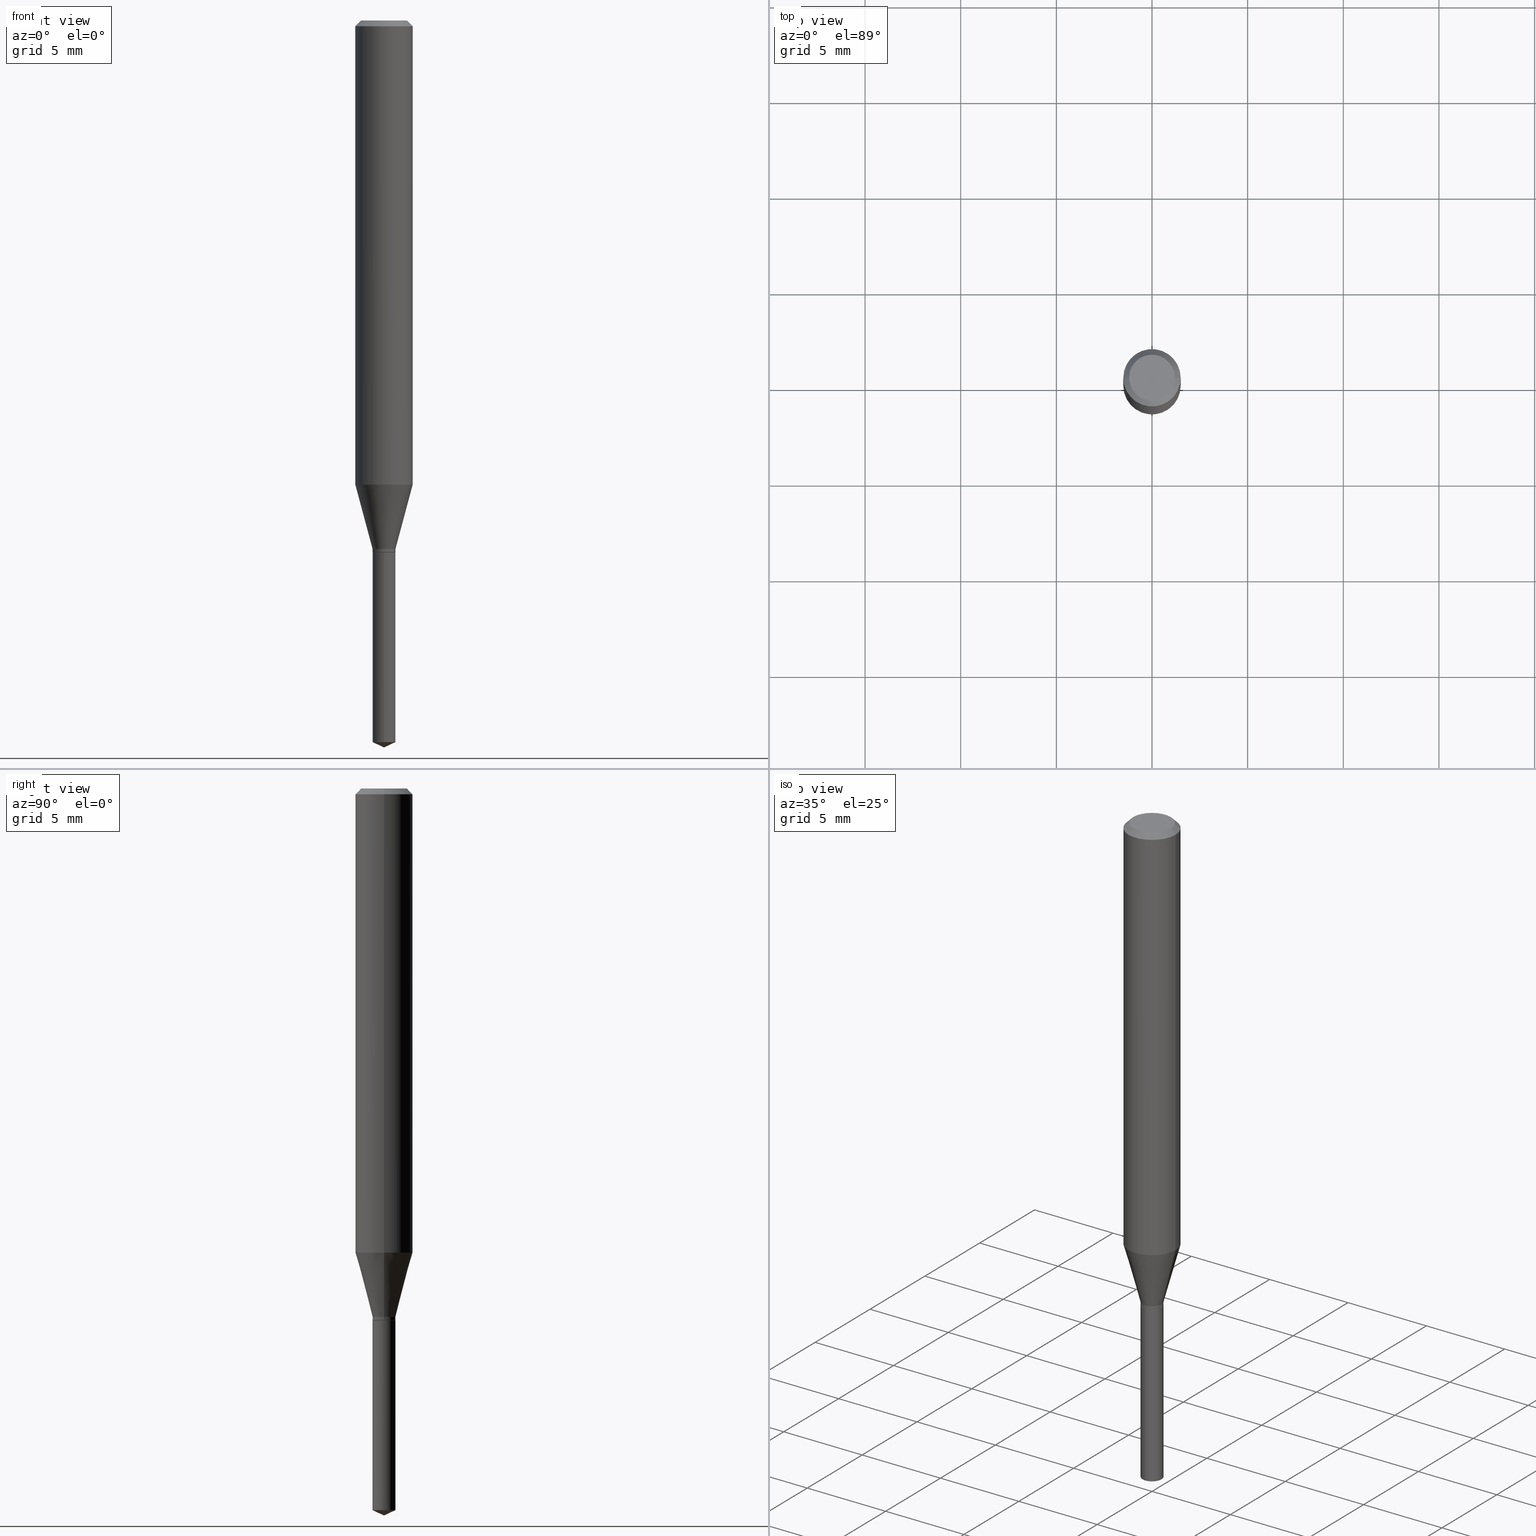
[diagram: canonical four-view strip — front | top / right | iso, engineering-drawing reading convention]
A machine part, canonical four-view strip (front | top / right | iso — engineering-drawing reading convention). The complete STEP part file that produces these views, byte-faithful:
ISO-10303-21;
HEADER;
FILE_DESCRIPTION (( 'STEP AP203' ),
    '1' );
FILE_NAME ('08154.STEP',
    '2024-04-24T13:19:30',
    ( '' ),
    ( '' ),
    'SwSTEP 2.0',
    'SolidWorks 2023',
    '' );
FILE_SCHEMA (( 'CONFIG_CONTROL_DESIGN' ));
ENDSEC;

DATA;
#1 = VERTEX_POINT ( 'NONE', #266 ) ;
#2 = DIRECTION ( 'NONE',  ( 0.7071067811865452413, -7.319954787623248157E-15, -0.7071067811865497932 ) ) ;
#3 = FACE_OUTER_BOUND ( 'NONE', #297, .T. ) ;
#4 = ORIENTED_EDGE ( 'NONE', *, *, #396, .F. ) ;
#5 = CARTESIAN_POINT ( 'NONE',  ( 2.888098660104664642E-31, -4.123439461173780879E-17, -0.01181000000000007565 ) ) ;
#6 = ORIENTED_EDGE ( 'NONE', *, *, #234, .F. ) ;
#7 = EDGE_LOOP ( 'NONE', ( #197, #283 ) ) ;
#8 = CONICAL_SURFACE ( 'NONE', #246, 0.05904999999999999832, 0.7853981633974450594 ) ;
#9 = ORIENTED_EDGE ( 'NONE', *, *, #427, .T. ) ;
#10 = CARTESIAN_POINT ( 'NONE',  ( 0.000000000000000000, 0.000000000000000000, 0.000000000000000000 ) ) ;
#11 = EDGE_LOOP ( 'NONE', ( #21, #193, #288, #100 ) ) ;
#12 = ADVANCED_FACE ( 'NONE', ( #3 ), #294, .T. ) ;
#13 = ORIENTED_EDGE ( 'NONE', *, *, #217, .T. ) ;
#14 = DIRECTION ( 'NONE',  ( -2.445402730703145379E-29, 3.491575962694140016E-15, 1.000000000000000000 ) ) ;
#15 = DIRECTION ( 'NONE',  ( -6.328713451373347290E-15, -0.9063077870366454958, 0.4226182617407092112 ) ) ;
#16 = AXIS2_PLACEMENT_3D ( 'NONE', #189, #344, #263 ) ;
#17 = CARTESIAN_POINT ( 'NONE',  ( -0.02359999999999997516, -3.628948722218652525E-15, -1.087399999999999922 ) ) ;
#18 = DIRECTION ( 'NONE',  ( -2.445468806185136877E-29, 3.491481338843145188E-15, 1.000000000000000000 ) ) ;
#19 = DIRECTION ( 'NONE',  ( 1.000000000000000000, -6.982962677686258033E-15, 0.000000000000000000 ) ) ;
#20 = DIRECTION ( 'NONE',  ( 1.000000000000000000, -6.982962677686258033E-15, 0.000000000000000000 ) ) ;
#21 = ORIENTED_EDGE ( 'NONE', *, *, #477, .T. ) ;
#22 = DATE_AND_TIME ( #363, #153 ) ;
#23 = AXIS2_PLACEMENT_3D ( 'NONE', #168, #392, #160 ) ;
#24 = APPROVAL_PERSON_ORGANIZATION ( #317, #387, #402 ) ;
#25 = CONICAL_SURFACE ( 'NONE', #121, 0.02359999999999997516, 0.2617993877991499074 ) ;
#26 = DIRECTION ( 'NONE',  ( 1.000000000000000000, -6.982962677686266711E-15, 4.876185090822587894E-29 ) ) ;
#27 = DIRECTION ( 'NONE',  ( -2.445402730703145379E-29, 3.491575962694140016E-15, 1.000000000000000000 ) ) ;
#28 = MANIFOLD_SOLID_BREP ( 'Body-Move/Copy2[1]', #222 ) ;
#29 = COORDINATED_UNIVERSAL_TIME_OFFSET ( 5, 0, .BEHIND. ) ;
#30 = DIRECTION ( 'NONE',  ( 2.445468806185136597E-29, -3.491481338843145583E-15, -1.000000000000000000 ) ) ;
#31 = CONICAL_SURFACE ( 'NONE', #456, 84.42940631927235984, 1.134464013796306903 ) ;
#32 = FACE_OUTER_BOUND ( 'NONE', #36, .T. ) ;
#33 = DIRECTION ( 'NONE',  ( 6.439704144417001954E-15, 0.9063077870366483824, 0.4226182617407028830 ) ) ;
#34 = VERTEX_POINT ( 'NONE', #380 ) ;
#35 = CARTESIAN_POINT ( 'NONE',  ( 2.659202779845717713E-29, -3.796636807858036634E-15, -1.087399999999999922 ) ) ;
#36 = EDGE_LOOP ( 'NONE', ( #115, #352, #410, #221 ) ) ;
#37 =( GEOMETRIC_REPRESENTATION_CONTEXT ( 3 ) GLOBAL_UNCERTAINTY_ASSIGNED_CONTEXT ( ( #459 ) ) GLOBAL_UNIT_ASSIGNED_CONTEXT ( ( #220, #124, #196 ) ) REPRESENTATION_CONTEXT ( 'NONE', 'WORKASPACE' ) );
#38 = EDGE_CURVE ( 'NONE', #76, #280, #425, .T. ) ;
#39 = ORIENTED_EDGE ( 'NONE', *, *, #217, .F. ) ;
#40 = ORIENTED_EDGE ( 'NONE', *, *, #78, .T. ) ;
#41 = CARTESIAN_POINT ( 'NONE',  ( 3.631728028533853753E-29, -5.185218924775541926E-15, -1.485095139267541775 ) ) ;
#42 = DIRECTION ( 'NONE',  ( 1.000000000000000000, -6.982962677686266711E-15, 4.876176775795935793E-29 ) ) ;
#43 = ADVANCED_FACE ( 'NONE', ( #384 ), #449, .T. ) ;
#44 = APPLICATION_CONTEXT ( 'configuration controlled 3d designs of mechanical parts and assemblies' ) ;
#45 = CARTESIAN_POINT ( 'NONE',  ( 0.000000000000000000, 0.000000000000000000, 0.000000000000000000 ) ) ;
#46 = ADVANCED_FACE ( 'NONE', ( #225 ), #81, .T. ) ;
#47 = AXIS2_PLACEMENT_3D ( 'NONE', #444, #103, #414 ) ;
#48 = ORIENTED_EDGE ( 'NONE', *, *, #158, .T. ) ;
#49 = ORIENTED_EDGE ( 'NONE', *, *, #61, .F. ) ;
#50 = APPROVAL_DATE_TIME ( #353, #161 ) ;
#51 = ORIENTED_EDGE ( 'NONE', *, *, #234, .T. ) ;
#52 = DIRECTION ( 'NONE',  ( -1.000000000000000000, 6.982962677686266711E-15, 0.000000000000000000 ) ) ;
#53 = CALENDAR_DATE ( 2024, 24, 4 ) ;
#54 = DIRECTION ( 'NONE',  ( 0.7071067811865021646, -2.468850131081782561E-15, 0.7071067811865926478 ) ) ;
#55 = CARTESIAN_POINT ( 'NONE',  ( 2.335664319465592728E-29, -3.334709633011983914E-15, -0.9550987988716830301 ) ) ;
#56 = CARTESIAN_POINT ( 'NONE',  ( 2.659202779845717713E-29, -3.796636807858036634E-15, -1.087399999999999922 ) ) ;
#57 = FACE_OUTER_BOUND ( 'NONE', #79, .T. ) ;
#58 = VECTOR ( 'NONE', #111, 39.37007874015748854 ) ;
#59 = CC_DESIGN_APPROVAL ( #119, ( #399 ) ) ;
#60 = CARTESIAN_POINT ( 'NONE',  ( 0.02309999999999999901, -3.982732763218375225E-15, -1.094499999999999806 ) ) ;
#61 = EDGE_CURVE ( 'NONE', #1, #465, #437, .T. ) ;
#62 = APPROVAL_DATE_TIME ( #242, #119 ) ;
#63 = CARTESIAN_POINT ( 'NONE',  ( 0.04724000000000000421, -3.852183633974369345E-16, -3.380025165621689721E-19 ) ) ;
#64 = LOCAL_TIME ( 9, 19, 30.00000000000000000, #96 ) ;
#65 = ADVANCED_FACE ( 'NONE', ( #227 ), #462, .T. ) ;
#66 = CARTESIAN_POINT ( 'NONE',  ( 2.335664319465592728E-29, -3.334709633011983914E-15, -0.9550987988716830301 ) ) ;
#67 = ORIENTED_EDGE ( 'NONE', *, *, #435, .F. ) ;
#68 = CARTESIAN_POINT ( 'NONE',  ( 0.000000000000000000, 0.000000000000000000, 0.000000000000000000 ) ) ;
#69 = LINE ( 'NONE', #207, #289 ) ;
#70 = CARTESIAN_POINT ( 'NONE',  ( 2.888098660104664642E-31, -4.123439461173780879E-17, -0.01181000000000007565 ) ) ;
#71 = ORIENTED_EDGE ( 'NONE', *, *, #126, .F. ) ;
#72 = CARTESIAN_POINT ( 'NONE',  ( 0.05904999999999999832, -4.535783407291118600E-16, -0.01181000000000007565 ) ) ;
#73 = EDGE_CURVE ( 'NONE', #417, #428, #474, .T. ) ;
#74 = ORIENTED_EDGE ( 'NONE', *, *, #418, .F. ) ;
#75 = DIRECTION ( 'NONE',  ( -2.445402730703145379E-29, 3.491575962694140016E-15, 1.000000000000000000 ) ) ;
#76 = VERTEX_POINT ( 'NONE', #87 ) ;
#77 = DIRECTION ( 'NONE',  ( -2.445468806185136597E-29, 3.491481338843145583E-15, 1.000000000000000000 ) ) ;
#78 = EDGE_CURVE ( 'NONE', #389, #452, #269, .T. ) ;
#79 = EDGE_LOOP ( 'NONE', ( #39, #299, #48, #142 ) ) ;
#80 = AXIS2_PLACEMENT_3D ( 'NONE', #479, #276, #441 ) ;
#81 = CYLINDRICAL_SURFACE ( 'NONE', #330, 0.05905000000000006077 ) ;
#82 = EDGE_LOOP ( 'NONE', ( #433, #13, #460, #214 ) ) ;
#83 = DESIGN_CONTEXT ( 'detailed design', #44, 'design' ) ;
#84 = ORIENTED_EDGE ( 'NONE', *, *, #427, .F. ) ;
#85 = VECTOR ( 'NONE', #248, 39.37007874015748854 ) ;
#86 = ORIENTED_EDGE ( 'NONE', *, *, #38, .T. ) ;
#87 = CARTESIAN_POINT ( 'NONE',  ( 0.02359999999999997516, -3.961434727051432093E-15, -1.087399999999999922 ) ) ;
#88 = DIRECTION ( 'NONE',  ( -2.445468806185136597E-29, 3.491481338843145583E-15, 1.000000000000000000 ) ) ;
#89 = DIRECTION ( 'NONE',  ( -2.445468806185136597E-29, 3.491481338843145583E-15, 1.000000000000000000 ) ) ;
#90 = DATE_TIME_ROLE ( 'creation_date' ) ;
#91 = EDGE_CURVE ( 'NONE', #345, #129, #483, .T. ) ;
#92 = AXIS2_PLACEMENT_3D ( 'NONE', #164, #127, #26 ) ;
#93 = VECTOR ( 'NONE', #224, 39.37007874015748143 ) ;
#94 = VERTEX_POINT ( 'NONE', #407 ) ;
#95 = DIRECTION ( 'NONE',  ( 1.000000000000000000, 0.000000000000000000, 0.000000000000000000 ) ) ;
#96 = COORDINATED_UNIVERSAL_TIME_OFFSET ( 5, 0, .BEHIND. ) ;
#97 = EDGE_CURVE ( 'NONE', #389, #76, #260, .T. ) ;
#98 = DIRECTION ( 'NONE',  ( -2.445468806185136597E-29, 3.491481338843145583E-15, 1.000000000000000000 ) ) ;
#99 = VECTOR ( 'NONE', #15, 39.37007874015748143 ) ;
#100 = ORIENTED_EDGE ( 'NONE', *, *, #315, .F. ) ;
#101 = AXIS2_PLACEMENT_3D ( 'NONE', #284, #442, #448 ) ;
#102 = CARTESIAN_POINT ( 'NONE',  ( 0.000000000000000000, 0.000000000000000000, 0.000000000000000000 ) ) ;
#103 = DIRECTION ( 'NONE',  ( 2.438088387897960049E-29, -3.491481338843145188E-15, -1.000000000000000000 ) ) ;
#104 = PERSON_AND_ORGANIZATION_ROLE ( 'design_supplier' ) ;
#105 = DIRECTION ( 'NONE',  ( -2.445468806185136597E-29, 3.491481338843145583E-15, 1.000000000000000000 ) ) ;
#106 = EDGE_CURVE ( 'NONE', #280, #452, #112, .T. ) ;
#107 = AXIS2_PLACEMENT_3D ( 'NONE', #215, #412, #367 ) ;
#108 = CARTESIAN_POINT ( 'NONE',  ( 3.658712932950369103E-29, -5.223539666176875291E-15, -1.496099999999999985 ) ) ;
#109 = DIRECTION ( 'NONE',  ( -6.982962677686265133E-15, -1.000000000000000000, 5.787813545898861862E-15 ) ) ;
#110 = DIRECTION ( 'NONE',  ( 1.000000000000000000, -6.982962677686258033E-15, 0.000000000000000000 ) ) ;
#111 = DIRECTION ( 'NONE',  ( 0.2588190451025211836, 1.565188264969622559E-15, 0.9659258262890679791 ) ) ;
#112 = CIRCLE ( 'NONE', #306, 0.05905000000000011628 ) ;
#113 = AXIS2_PLACEMENT_3D ( 'NONE', #68, #436, #95 ) ;
#114 = EDGE_LOOP ( 'NONE', ( #386, #429, #86, #270 ) ) ;
#115 = ORIENTED_EDGE ( 'NONE', *, *, #440, .F. ) ;
#116 = VERTEX_POINT ( 'NONE', #312 ) ;
#117 = COORDINATED_UNIVERSAL_TIME_OFFSET ( 5, 0, .BEHIND. ) ;
#118 = EDGE_LOOP ( 'NONE', ( #134, #219, #49 ) ) ;
#119 = APPROVAL ( #438, 'UNSPECIFIED' ) ;
#120 = LINE ( 'NONE', #150, #457 ) ;
#121 = AXIS2_PLACEMENT_3D ( 'NONE', #56, #77, #336 ) ;
#122 = DIMENSIONAL_EXPONENTS ( 1.000000000000000000, 0.000000000000000000, 0.000000000000000000, 0.000000000000000000, 0.000000000000000000, 0.000000000000000000, 0.000000000000000000 ) ;
#123 = CARTESIAN_POINT ( 'NONE',  ( -9.261705871415894043E-28, 1.322399773465276608E-13, 37.87397874015748300 ) ) ;
#124 =( NAMED_UNIT ( * ) PLANE_ANGLE_UNIT ( ) SI_UNIT ( $, .RADIAN. ) );
#125 = CC_DESIGN_PERSON_AND_ORGANIZATION_ASSIGNMENT ( #180, #291, ( #399 ) ) ;
#126 = EDGE_CURVE ( 'NONE', #76, #389, #144, .T. ) ;
#127 = DIRECTION ( 'NONE',  ( -2.445468806185136597E-29, 3.491481338843145583E-15, 1.000000000000000000 ) ) ;
#128 = CIRCLE ( 'NONE', #136, 0.02359999999999997169 ) ;
#129 = VERTEX_POINT ( 'NONE', #472 ) ;
#130 = APPROVAL_DATE_TIME ( #22, #387 ) ;
#131 = CARTESIAN_POINT ( 'NONE',  ( 2.676565608369631794E-29, -3.821426325363822773E-15, -1.094499999999999806 ) ) ;
#132 = DATE_AND_TIME ( #165, #307 ) ;
#133 = CARTESIAN_POINT ( 'NONE',  ( 1.676880856394103626E-16, 0.02359999999999617959, -1.094500000000000028 ) ) ;
#134 = ORIENTED_EDGE ( 'NONE', *, *, #342, .F. ) ;
#135 = FACE_OUTER_BOUND ( 'NONE', #7, .T. ) ;
#136 = AXIS2_PLACEMENT_3D ( 'NONE', #333, #98, #245 ) ;
#137 = AXIS2_PLACEMENT_3D ( 'NONE', #5, #179, #52 ) ;
#138 = PLANE ( 'NONE',  #47 ) ;
#139 = ADVANCED_FACE ( 'NONE', ( #235 ), #390, .T. ) ;
#140 = CARTESIAN_POINT ( 'NONE',  ( -1.647979191933691307E-16, -0.02360000000000382278, -1.094499999999999806 ) ) ;
#141 = CARTESIAN_POINT ( 'NONE',  ( 2.888098660104664642E-31, -4.123439461173780879E-17, -0.01181000000000007565 ) ) ;
#142 = ORIENTED_EDGE ( 'NONE', *, *, #244, .F. ) ;
#143 = ADVANCED_BREP_SHAPE_REPRESENTATION ( '08154', ( #28, #187, #113 ), #37 ) ;
#144 = CIRCLE ( 'NONE', #385, 0.02359999999999997516 ) ;
#145 = APPROVAL_PERSON_ORGANIZATION ( #275, #119, #206 ) ;
#146 = FACE_OUTER_BOUND ( 'NONE', #419, .T. ) ;
#147 = EDGE_CURVE ( 'NONE', #116, #465, #202, .T. ) ;
#148 = LINE ( 'NONE', #420, #93 ) ;
#149 = ORIENTED_EDGE ( 'NONE', *, *, #315, .T. ) ;
#150 = CARTESIAN_POINT ( 'NONE',  ( -0.02359999999999997169, 1.676880856393834427E-16, -1.160868681300156402E-30 ) ) ;
#151 = EDGE_LOOP ( 'NONE', ( #216, #453 ) ) ;
#152 = CONICAL_SURFACE ( 'NONE', #298, 0.02309999999999999901, 0.7853981633973843302 ) ;
#153 = LOCAL_TIME ( 9, 19, 30.00000000000000000, #29 ) ;
#154 = ORIENTED_EDGE ( 'NONE', *, *, #61, .T. ) ;
#155 = EDGE_CURVE ( 'NONE', #252, #94, #199, .T. ) ;
#156 = DIRECTION ( 'NONE',  ( -2.445468806185136597E-29, 3.491481338843145583E-15, 1.000000000000000000 ) ) ;
#157 = ORIENTED_EDGE ( 'NONE', *, *, #310, .F. ) ;
#158 = EDGE_CURVE ( 'NONE', #345, #34, #311, .T. ) ;
#159 = APPLICATION_PROTOCOL_DEFINITION ( 'international standard', 'config_control_design', 1994, #184 ) ;
#160 = DIRECTION ( 'NONE',  ( 1.000000000000000000, -6.982962677686265922E-15, 0.000000000000000000 ) ) ;
#161 = APPROVAL ( #232, 'UNSPECIFIED' ) ;
#162 = EDGE_CURVE ( 'NONE', #129, #345, #181, .T. ) ;
#163 = DIRECTION ( 'NONE',  ( -2.445468806185136597E-29, 3.491481338843145583E-15, 1.000000000000000000 ) ) ;
#164 = CARTESIAN_POINT ( 'NONE',  ( 8.265746106709734507E-48, -1.180129479067563789E-33, -3.380025165646692144E-19 ) ) ;
#165 = CALENDAR_DATE ( 2024, 24, 4 ) ;
#166 = CARTESIAN_POINT ( 'NONE',  ( 2.659202779845717713E-29, -3.796636807858036634E-15, -1.087399999999999922 ) ) ;
#167 = LINE ( 'NONE', #282, #434 ) ;
#168 = CARTESIAN_POINT ( 'NONE',  ( 2.659202779845717713E-29, -3.796636807858036634E-15, -1.087399999999999922 ) ) ;
#169 = COORDINATED_UNIVERSAL_TIME_OFFSET ( 5, 0, .BEHIND. ) ;
#170 = FACE_OUTER_BOUND ( 'NONE', #339, .T. ) ;
#171 = CARTESIAN_POINT ( 'NONE',  ( -0.02359999999999997169, -3.640470610636835238E-15, -1.093999999999999861 ) ) ;
#172 = AXIS2_PLACEMENT_3D ( 'NONE', #401, #308, #322 ) ;
#173 = LOCAL_TIME ( 9, 19, 30.00000000000000000, #117 ) ;
#174 = EDGE_CURVE ( 'NONE', #326, #428, #378, .T. ) ;
#175 = DIRECTION ( 'NONE',  ( -2.445468806185136877E-29, 3.491481338843145188E-15, 1.000000000000000000 ) ) ;
#176 = CARTESIAN_POINT ( 'NONE',  ( 0.02309999999999999901, -3.982732763218375225E-15, -1.094499999999999806 ) ) ;
#177 = ADVANCED_FACE ( 'NONE', ( #464 ), #31, .T. ) ;
#178 = EDGE_LOOP ( 'NONE', ( #157, #154, #149, #74 ) ) ;
#179 = DIRECTION ( 'NONE',  ( 2.445468806185136597E-29, -3.491481338843145583E-15, -1.000000000000000000 ) ) ;
#180 = PERSON_AND_ORGANIZATION ( #292, #261 ) ;
#181 = CIRCLE ( 'NONE', #285, 0.02309999999999999901 ) ;
#182 = AXIS2_PLACEMENT_3D ( 'NONE', #35, #463, #381 ) ;
#183 = EDGE_LOOP ( 'NONE', ( #313, #67, #334, #51 ) ) ;
#184 = APPLICATION_CONTEXT ( 'configuration controlled 3d designs of mechanical parts and assemblies' ) ;
#185 = CARTESIAN_POINT ( 'NONE',  ( 0.02359999999999997169, -1.647979191933957054E-16, 1.150777719087839379E-30 ) ) ;
#186 = ORIENTED_EDGE ( 'NONE', *, *, #106, .F. ) ;
#187 = MANIFOLD_SOLID_BREP ( 'Body-Move/Copy2[2]', #337 ) ;
#188 = FACE_OUTER_BOUND ( 'NONE', #114, .T. ) ;
#189 = CARTESIAN_POINT ( 'NONE',  ( 3.631728028533853753E-29, -5.185218924775541926E-15, -1.485095139267541775 ) ) ;
#190 = ADVANCED_FACE ( 'NONE', ( #57 ), #152, .T. ) ;
#191 = ORIENTED_EDGE ( 'NONE', *, *, #147, .F. ) ;
#192 = APPROVAL_PERSON_ORGANIZATION ( #228, #161, #394 ) ;
#193 = ORIENTED_EDGE ( 'NONE', *, *, #310, .T. ) ;
#194 = CARTESIAN_POINT ( 'NONE',  ( 2.676565608369631794E-29, -3.821426325363822773E-15, -1.094499999999999806 ) ) ;
#195 = ORIENTED_EDGE ( 'NONE', *, *, #126, .T. ) ;
#196 =( NAMED_UNIT ( * ) SI_UNIT ( $, .STERADIAN. ) SOLID_ANGLE_UNIT ( ) );
#197 = ORIENTED_EDGE ( 'NONE', *, *, #91, .F. ) ;
#198 = CARTESIAN_POINT ( 'NONE',  ( -1.647979191933595657E-16, -0.02360000000000518280, -1.485095139267541775 ) ) ;
#199 = CIRCLE ( 'NONE', #432, 0.02360000000000000292 ) ;
#200 = CARTESIAN_POINT ( 'NONE',  ( 2.676565608369631794E-29, -3.821426325363822773E-15, -1.094499999999999806 ) ) ;
#201 = PERSON_AND_ORGANIZATION_ROLE ( 'design_owner' ) ;
#202 = LINE ( 'NONE', #268, #99 ) ;
#203 = PRODUCT_DEFINITION_SHAPE ( 'NONE', 'NONE',  #413 ) ;
#204 = FACE_OUTER_BOUND ( 'NONE', #233, .T. ) ;
#205 = CIRCLE ( 'NONE', #92, 0.04724000000000000421 ) ;
#206 = APPROVAL_ROLE ( '' ) ;
#207 = CARTESIAN_POINT ( 'NONE',  ( 0.05905000000000006077, -4.123439461173744764E-16, 2.879382386107503023E-30 ) ) ;
#208 = EDGE_CURVE ( 'NONE', #301, #417, #205, .T. ) ;
#209 = PERSON_AND_ORGANIZATION ( #292, #261 ) ;
#210 = ADVANCED_FACE ( 'NONE', ( #371 ), #8, .T. ) ;
#211 = DIRECTION ( 'NONE',  ( 1.000000000000000000, -6.982962677686266711E-15, 0.000000000000000000 ) ) ;
#212 = AXIS2_PLACEMENT_3D ( 'NONE', #131, #243, #240 ) ;
#213 = SECURITY_CLASSIFICATION ( '', '', #461 ) ;
#214 = ORIENTED_EDGE ( 'NONE', *, *, #158, .F. ) ;
#215 = CARTESIAN_POINT ( 'NONE',  ( 2.676565608369631794E-29, -3.821426325363822773E-15, -1.094499999999999806 ) ) ;
#216 = ORIENTED_EDGE ( 'NONE', *, *, #155, .T. ) ;
#217 = EDGE_CURVE ( 'NONE', #129, #230, #372, .T. ) ;
#218 = FACE_OUTER_BOUND ( 'NONE', #445, .T. ) ;
#219 = ORIENTED_EDGE ( 'NONE', *, *, #147, .T. ) ;
#220 =( CONVERSION_BASED_UNIT ( 'INCH', #290 ) LENGTH_UNIT ( ) NAMED_UNIT ( #122 ) );
#221 = ORIENTED_EDGE ( 'NONE', *, *, #97, .F. ) ;
#222 = CLOSED_SHELL ( 'NONE', ( #139, #177, #43, #65, #364 ) ) ;
#223 = CONICAL_SURFACE ( 'NONE', #379, 0.02309999999999999901, 0.7853981633973843302 ) ;
#224 = DIRECTION ( 'NONE',  ( -2.445468806185136877E-29, 3.491481338843145188E-15, 1.000000000000000000 ) ) ;
#225 = FACE_OUTER_BOUND ( 'NONE', #328, .T. ) ;
#226 = ORIENTED_EDGE ( 'NONE', *, *, #106, .T. ) ;
#227 = FACE_OUTER_BOUND ( 'NONE', #178, .T. ) ;
#228 = PERSON_AND_ORGANIZATION ( #292, #261 ) ;
#229 = CARTESIAN_POINT ( 'NONE',  ( 0.02359999999999997516, -3.961434727051432093E-15, -1.087399999999999922 ) ) ;
#230 = VERTEX_POINT ( 'NONE', #171 ) ;
#231 = AXIS2_PLACEMENT_3D ( 'NONE', #41, #14, #470 ) ;
#232 = APPROVAL_STATUS ( 'not_yet_approved' ) ;
#233 = EDGE_LOOP ( 'NONE', ( #430, #316, #71, #4 ) ) ;
#234 = EDGE_CURVE ( 'NONE', #428, #326, #272, .T. ) ;
#235 = FACE_OUTER_BOUND ( 'NONE', #11, .T. ) ;
#236 = CARTESIAN_POINT ( 'NONE',  ( 2.676565608369631794E-29, -3.821426325363822773E-15, -1.094499999999999806 ) ) ;
#237 = DIRECTION ( 'NONE',  ( -6.982962677686265133E-15, -1.000000000000000000, 5.787813545898861862E-15 ) ) ;
#238 = DIRECTION ( 'NONE',  ( 1.000000000000000000, -6.982962677686266711E-15, 0.000000000000000000 ) ) ;
#239 = LOCAL_TIME ( 9, 19, 30.00000000000000000, #383 ) ;
#240 = DIRECTION ( 'NONE',  ( -6.982962677686265133E-15, -1.000000000000000000, 5.787813545898861862E-15 ) ) ;
#241 = ADVANCED_FACE ( 'NONE', ( #32 ), #329, .T. ) ;
#242 = DATE_AND_TIME ( #398, #64 ) ;
#243 = DIRECTION ( 'NONE',  ( -2.445402730703145379E-29, 3.491575962694140016E-15, 1.000000000000000000 ) ) ;
#244 = EDGE_CURVE ( 'NONE', #230, #34, #128, .T. ) ;
#245 = DIRECTION ( 'NONE',  ( 1.000000000000000000, -6.982962677686266711E-15, 0.000000000000000000 ) ) ;
#246 = AXIS2_PLACEMENT_3D ( 'NONE', #70, #30, #281 ) ;
#247 = EDGE_CURVE ( 'NONE', #452, #280, #415, .T. ) ;
#248 = DIRECTION ( 'NONE',  ( -0.7071067811865021646, 7.493145998870188499E-15, 0.7071067811865926478 ) ) ;
#249 = CARTESIAN_POINT ( 'NONE',  ( 0.05905000000000011628, -3.747053579129358835E-15, -0.9550987988716830301 ) ) ;
#250 = DIRECTION ( 'NONE',  ( 1.000000000000000000, -6.982962677686266711E-15, 0.000000000000000000 ) ) ;
#251 = VECTOR ( 'NONE', #54, 39.37007874015748854 ) ;
#252 = VERTEX_POINT ( 'NONE', #140 ) ;
#253 = PLANE ( 'NONE',  #107 ) ;
#254 = ORIENTED_EDGE ( 'NONE', *, *, #296, .F. ) ;
#255 = ORIENTED_EDGE ( 'NONE', *, *, #174, .T. ) ;
#256 = FACE_OUTER_BOUND ( 'NONE', #82, .T. ) ;
#257 = ORIENTED_EDGE ( 'NONE', *, *, #208, .T. ) ;
#258 = CARTESIAN_POINT ( 'NONE',  ( 0.05904999999999999832, -4.463468013801466955E-16, -0.01181000000000007565 ) ) ;
#259 = CARTESIAN_POINT ( 'NONE',  ( -9.261705871415894043E-28, 1.322399773465276608E-13, 37.87397874015748300 ) ) ;
#260 = CIRCLE ( 'NONE', #23, 0.02359999999999997516 ) ;
#261 = ORGANIZATION ( 'UNSPECIFIED', 'UNSPECIFIED', '' ) ;
#262 = ORIENTED_EDGE ( 'NONE', *, *, #247, .T. ) ;
#263 = DIRECTION ( 'NONE',  ( -6.982962677686265133E-15, -1.000000000000000000, 0.000000000000000000 ) ) ;
#264 = ORIENTED_EDGE ( 'NONE', *, *, #73, .F. ) ;
#265 = CALENDAR_DATE ( 2024, 24, 4 ) ;
#266 = CARTESIAN_POINT ( 'NONE',  ( 1.676880856394199276E-16, 0.02359999999999481263, -1.485095139267541775 ) ) ;
#267 = AXIS2_PLACEMENT_3D ( 'NONE', #45, #156, #455 ) ;
#268 = CARTESIAN_POINT ( 'NONE',  ( 3.658567025404975087E-29, -5.223746797786701947E-15, -1.496099999999999985 ) ) ;
#269 = LINE ( 'NONE', #17, #423 ) ;
#270 = ORIENTED_EDGE ( 'NONE', *, *, #247, .F. ) ;
#271 = ADVANCED_FACE ( 'NONE', ( #170 ), #138, .F. ) ;
#272 = CIRCLE ( 'NONE', #488, 0.05904999999999999832 ) ;
#273 = CC_DESIGN_APPROVAL ( #161, ( #213 ) ) ;
#274 = DIRECTION ( 'NONE',  ( -0.2588190451025211836, 5.211531920934547886E-15, 0.9659258262890679791 ) ) ;
#275 = PERSON_AND_ORGANIZATION ( #292, #261 ) ;
#276 = DIRECTION ( 'NONE',  ( -2.445468806185136597E-29, 3.491481338843145583E-15, 1.000000000000000000 ) ) ;
#277 = CARTESIAN_POINT ( 'NONE',  ( 2.675342873966538993E-29, -3.819680584694400481E-15, -1.093999999999999861 ) ) ;
#278 = AXIS2_PLACEMENT_3D ( 'NONE', #368, #359, #20 ) ;
#279 = AXIS2_PLACEMENT_3D ( 'NONE', #277, #105, #250 ) ;
#280 = VERTEX_POINT ( 'NONE', #249 ) ;
#281 = DIRECTION ( 'NONE',  ( -1.000000000000000000, 6.982962677686266711E-15, 0.000000000000000000 ) ) ;
#282 = CARTESIAN_POINT ( 'NONE',  ( -1.647979191933691307E-16, -0.02360000000000382278, -1.094499999999999806 ) ) ;
#283 = ORIENTED_EDGE ( 'NONE', *, *, #162, .F. ) ;
#284 = CARTESIAN_POINT ( 'NONE',  ( 2.676565608369631794E-29, -3.821426325363822773E-15, -1.094499999999999806 ) ) ;
#285 = AXIS2_PLACEMENT_3D ( 'NONE', #194, #89, #469 ) ;
#286 = PRODUCT_RELATED_PRODUCT_CATEGORY ( 'detail', '', ( #404 ) ) ;
#287 = CC_DESIGN_APPROVAL ( #387, ( #413 ) ) ;
#288 = ORIENTED_EDGE ( 'NONE', *, *, #155, .F. ) ;
#289 = VECTOR ( 'NONE', #175, 39.37007874015748143 ) ;
#290 = LENGTH_MEASURE_WITH_UNIT ( LENGTH_MEASURE( 0.02539999999999999897 ), #422 );
#291 = PERSON_AND_ORGANIZATION_ROLE ( 'creator' ) ;
#292 = PERSON ( 'UNSPECIFIED', 'UNSPECIFIED', 'UNSPECIFIED', ('UNSPECIFIED'), ('UNSPECIFIED'), ('UNSPECIFIED') ) ;
#293 = LINE ( 'NONE', #185, #424 ) ;
#294 = CYLINDRICAL_SURFACE ( 'NONE', #267, 0.05905000000000006077 ) ;
#295 = ADVANCED_FACE ( 'NONE', ( #135 ), #253, .F. ) ;
#296 = EDGE_CURVE ( 'NONE', #280, #326, #69, .T. ) ;
#297 = EDGE_LOOP ( 'NONE', ( #226, #9, #376, #254 ) ) ;
#298 = AXIS2_PLACEMENT_3D ( 'NONE', #200, #358, #19 ) ;
#299 = ORIENTED_EDGE ( 'NONE', *, *, #162, .T. ) ;
#300 = ORIENTED_EDGE ( 'NONE', *, *, #208, .F. ) ;
#301 = VERTEX_POINT ( 'NONE', #63 ) ;
#302 = CARTESIAN_POINT ( 'NONE',  ( 2.676565608369631794E-29, -3.821426325363822773E-15, -1.094499999999999806 ) ) ;
#303 = SHAPE_DEFINITION_REPRESENTATION ( #203, #143 ) ;
#304 = DIRECTION ( 'NONE',  ( 1.000000000000000000, -6.982962677686266711E-15, 0.000000000000000000 ) ) ;
#305 = EDGE_LOOP ( 'NONE', ( #191, #341, #426 ) ) ;
#306 = AXIS2_PLACEMENT_3D ( 'NONE', #55, #478, #238 ) ;
#307 = LOCAL_TIME ( 9, 19, 30.00000000000000000, #169 ) ;
#308 = DIRECTION ( 'NONE',  ( -2.445402730703145379E-29, 3.491575962694140016E-15, 1.000000000000000000 ) ) ;
#309 = DIRECTION ( 'NONE',  ( 1.000000000000000000, -6.982962677686266711E-15, 4.876185090822587894E-29 ) ) ;
#310 = EDGE_CURVE ( 'NONE', #1, #94, #369, .T. ) ;
#311 = LINE ( 'NONE', #60, #251 ) ;
#312 = CARTESIAN_POINT ( 'NONE',  ( 3.658567025404975087E-29, -5.223746797786701947E-15, -1.496099999999999985 ) ) ;
#313 = ORIENTED_EDGE ( 'NONE', *, *, #388, .F. ) ;
#314 = CC_DESIGN_DATE_AND_TIME_ASSIGNMENT ( #132, #90, ( #413 ) ) ;
#315 = EDGE_CURVE ( 'NONE', #465, #252, #167, .T. ) ;
#316 = ORIENTED_EDGE ( 'NONE', *, *, #440, .T. ) ;
#317 = PERSON_AND_ORGANIZATION ( #292, #261 ) ;
#318 = AXIS2_PLACEMENT_3D ( 'NONE', #403, #351, #304 ) ;
#319 = CONICAL_SURFACE ( 'NONE', #182, 0.02359999999999997516, 0.2617993877991499074 ) ;
#320 = PERSON_AND_ORGANIZATION_ROLE ( 'creator' ) ;
#321 = CYLINDRICAL_SURFACE ( 'NONE', #80, 0.02359999999999997169 ) ;
#322 = DIRECTION ( 'NONE',  ( -6.982962677686265133E-15, -1.000000000000000000, 5.787813545898861862E-15 ) ) ;
#323 = EDGE_CURVE ( 'NONE', #34, #230, #466, .T. ) ;
#324 = MECHANICAL_CONTEXT ( 'NONE', #184, 'mechanical' ) ;
#325 = DIRECTION ( 'NONE',  ( -2.445468806185136597E-29, 3.491481338843145583E-15, 1.000000000000000000 ) ) ;
#326 = VERTEX_POINT ( 'NONE', #72 ) ;
#327 = APPLICATION_PROTOCOL_DEFINITION ( 'international standard', 'config_control_design', 1994, #44 ) ;
#328 = EDGE_LOOP ( 'NONE', ( #84, #262, #361, #6 ) ) ;
#329 = CYLINDRICAL_SURFACE ( 'NONE', #346, 0.02359999999999997169 ) ;
#330 = AXIS2_PLACEMENT_3D ( 'NONE', #10, #382, #42 ) ;
#331 = AXIS2_PLACEMENT_3D ( 'NONE', #236, #75, #109 ) ;
#332 = PERSON_AND_ORGANIZATION ( #292, #261 ) ;
#333 = CARTESIAN_POINT ( 'NONE',  ( 2.675342873966538993E-29, -3.819680584694400481E-15, -1.093999999999999861 ) ) ;
#334 = ORIENTED_EDGE ( 'NONE', *, *, #73, .T. ) ;
#335 = FACE_OUTER_BOUND ( 'NONE', #151, .T. ) ;
#336 = DIRECTION ( 'NONE',  ( 1.000000000000000000, -6.982962677686265922E-15, 0.000000000000000000 ) ) ;
#337 = CLOSED_SHELL ( 'NONE', ( #443, #391, #12, #473, #377, #241, #480, #46, #210, #271, #295, #190 ) ) ;
#338 = AXIS2_PLACEMENT_3D ( 'NONE', #489, #88, #309 ) ;
#339 = EDGE_LOOP ( 'NONE', ( #447, #257 ) ) ;
#340 = CARTESIAN_POINT ( 'NONE',  ( -0.05904999999999999832, -1.268396528345520540E-15, -0.01181000000000007565 ) ) ;
#341 = ORIENTED_EDGE ( 'NONE', *, *, #342, .T. ) ;
#342 = EDGE_CURVE ( 'NONE', #116, #1, #375, .T. ) ;
#343 = LINE ( 'NONE', #258, #416 ) ;
#344 = DIRECTION ( 'NONE',  ( -2.445402730703145379E-29, 3.491575962694140016E-15, 1.000000000000000000 ) ) ;
#345 = VERTEX_POINT ( 'NONE', #176 ) ;
#346 = AXIS2_PLACEMENT_3D ( 'NONE', #102, #409, #481 ) ;
#347 = CC_DESIGN_SECURITY_CLASSIFICATION ( #213, ( #399 ) ) ;
#348 = DATE_AND_TIME ( #53, #173 ) ;
#349 = DIRECTION ( 'NONE',  ( -6.982962677686266711E-15, -1.000000000000000000, 3.520397390770536306E-15 ) ) ;
#350 = PERSON_AND_ORGANIZATION_ROLE ( 'classification_officer' ) ;
#351 = DIRECTION ( 'NONE',  ( -2.445468806185136597E-29, 3.491481338843145583E-15, 1.000000000000000000 ) ) ;
#352 = ORIENTED_EDGE ( 'NONE', *, *, #244, .T. ) ;
#353 = DATE_AND_TIME ( #265, #239 ) ;
#354 = ORIENTED_EDGE ( 'NONE', *, *, #388, .T. ) ;
#355 = AXIS2_PLACEMENT_3D ( 'NONE', #259, #458, #349 ) ;
#356 = CONICAL_SURFACE ( 'NONE', #137, 0.05904999999999999832, 0.7853981633974450594 ) ;
#357 = DATE_TIME_ROLE ( 'classification_date' ) ;
#358 = DIRECTION ( 'NONE',  ( -2.445468806185136597E-29, 3.491481338843145583E-15, 1.000000000000000000 ) ) ;
#359 = DIRECTION ( 'NONE',  ( -2.445468806185136597E-29, 3.491481338843145583E-15, 1.000000000000000000 ) ) ;
#360 = CC_DESIGN_PERSON_AND_ORGANIZATION_ASSIGNMENT ( #405, #320, ( #413 ) ) ;
#361 = ORIENTED_EDGE ( 'NONE', *, *, #296, .T. ) ;
#362 = CARTESIAN_POINT ( 'NONE',  ( -0.05904999999999999832, 3.711095515056362547E-16, -0.01181000000000007565 ) ) ;
#363 = CALENDAR_DATE ( 2024, 24, 4 ) ;
#364 = ADVANCED_FACE ( 'NONE', ( #335 ), #487, .F. ) ;
#365 = DIRECTION ( 'NONE',  ( -0.7071067811865452413, 2.468850131082233000E-15, -0.7071067811865497932 ) ) ;
#366 = CIRCLE ( 'NONE', #338, 0.04724000000000000421 ) ;
#367 = DIRECTION ( 'NONE',  ( 1.000000000000000000, -6.982962677686265922E-15, 4.876176775795935793E-29 ) ) ;
#368 = CARTESIAN_POINT ( 'NONE',  ( 2.676565608369631794E-29, -3.821426325363822773E-15, -1.094499999999999806 ) ) ;
#369 = LINE ( 'NONE', #133, #484 ) ;
#370 = APPROVAL_STATUS ( 'not_yet_approved' ) ;
#371 = FACE_OUTER_BOUND ( 'NONE', #183, .T. ) ;
#372 = LINE ( 'NONE', #411, #85 ) ;
#373 = CIRCLE ( 'NONE', #331, 0.02360000000000000292 ) ;
#374 = CC_DESIGN_PERSON_AND_ORGANIZATION_ASSIGNMENT ( #332, #104, ( #399 ) ) ;
#375 = LINE ( 'NONE', #108, #450 ) ;
#376 = ORIENTED_EDGE ( 'NONE', *, *, #174, .F. ) ;
#377 = ADVANCED_FACE ( 'NONE', ( #204 ), #321, .T. ) ;
#378 = CIRCLE ( 'NONE', #318, 0.05904999999999999832 ) ;
#379 = AXIS2_PLACEMENT_3D ( 'NONE', #302, #163, #110 ) ;
#380 = CARTESIAN_POINT ( 'NONE',  ( 0.02359999999999997169, -3.984478503887796729E-15, -1.093999999999999861 ) ) ;
#381 = DIRECTION ( 'NONE',  ( 1.000000000000000000, -6.982962677686265922E-15, 0.000000000000000000 ) ) ;
#382 = DIRECTION ( 'NONE',  ( -2.445468806185136597E-29, 3.491481338843145583E-15, 1.000000000000000000 ) ) ;
#383 = COORDINATED_UNIVERSAL_TIME_OFFSET ( 5, 0, .BEHIND. ) ;
#384 = FACE_OUTER_BOUND ( 'NONE', #118, .T. ) ;
#385 = AXIS2_PLACEMENT_3D ( 'NONE', #166, #439, #397 ) ;
#386 = ORIENTED_EDGE ( 'NONE', *, *, #78, .F. ) ;
#387 = APPROVAL ( #370, 'UNSPECIFIED' ) ;
#388 = EDGE_CURVE ( 'NONE', #301, #326, #343, .T. ) ;
#389 = VERTEX_POINT ( 'NONE', #451 ) ;
#390 = CYLINDRICAL_SURFACE ( 'NONE', #212, 0.02360000000000000292 ) ;
#391 = ADVANCED_FACE ( 'NONE', ( #146 ), #356, .T. ) ;
#392 = DIRECTION ( 'NONE',  ( -2.445468806185136597E-29, 3.491481338843145583E-15, 1.000000000000000000 ) ) ;
#393 = CARTESIAN_POINT ( 'NONE',  ( -0.05905000000000011628, -2.915134147545643633E-15, -0.9550987988716830301 ) ) ;
#394 = APPROVAL_ROLE ( '' ) ;
#395 = DIRECTION ( 'NONE',  ( -6.982962677686266711E-15, -1.000000000000000000, 3.520397390770536306E-15 ) ) ;
#396 = EDGE_CURVE ( 'NONE', #34, #76, #293, .T. ) ;
#397 = DIRECTION ( 'NONE',  ( 1.000000000000000000, -6.982962677686265922E-15, 0.000000000000000000 ) ) ;
#398 = CALENDAR_DATE ( 2024, 24, 4 ) ;
#399 = PRODUCT_DEFINITION_FORMATION_WITH_SPECIFIED_SOURCE ( 'ANY', '', #404, .NOT_KNOWN. ) ;
#400 = DIRECTION ( 'NONE',  ( -2.445402730703145379E-29, 3.491575962694140016E-15, 1.000000000000000000 ) ) ;
#401 = CARTESIAN_POINT ( 'NONE',  ( 2.676565608369631794E-29, -3.821426325363822773E-15, -1.094499999999999806 ) ) ;
#402 = APPROVAL_ROLE ( '' ) ;
#403 = CARTESIAN_POINT ( 'NONE',  ( 2.888098660104664642E-31, -4.123439461173780879E-17, -0.01181000000000007565 ) ) ;
#404 = PRODUCT ( '08154', '08154', '', ( #324 ) ) ;
#405 = PERSON_AND_ORGANIZATION ( #292, #261 ) ;
#406 = CARTESIAN_POINT ( 'NONE',  ( 2.676565608369631794E-29, -3.821426325363822773E-15, -1.094499999999999806 ) ) ;
#407 = CARTESIAN_POINT ( 'NONE',  ( 1.676880856394200262E-16, 0.02359999999999617959, -1.094500000000000028 ) ) ;
#408 = VECTOR ( 'NONE', #365, 39.37007874015748143 ) ;
#409 = DIRECTION ( 'NONE',  ( -2.445468806185136597E-29, 3.491481338843145583E-15, 1.000000000000000000 ) ) ;
#410 = ORIENTED_EDGE ( 'NONE', *, *, #396, .T. ) ;
#411 = CARTESIAN_POINT ( 'NONE',  ( -0.02309999999999999901, -3.657290953403239563E-15, -1.094499999999999806 ) ) ;
#412 = DIRECTION ( 'NONE',  ( -2.438088387897960049E-29, 3.491481338843145188E-15, 1.000000000000000000 ) ) ;
#413 = PRODUCT_DEFINITION ( 'UNKNOWN', '', #399, #83 ) ;
#414 = DIRECTION ( 'NONE',  ( -1.000000000000000000, 6.982962677686265922E-15, -4.876176775795935793E-29 ) ) ;
#415 = CIRCLE ( 'NONE', #475, 0.05905000000000011628 ) ;
#416 = VECTOR ( 'NONE', #2, 39.37007874015748143 ) ;
#417 = VERTEX_POINT ( 'NONE', #468 ) ;
#418 = EDGE_CURVE ( 'NONE', #94, #252, #373, .T. ) ;
#419 = EDGE_LOOP ( 'NONE', ( #300, #354, #255, #264 ) ) ;
#420 = CARTESIAN_POINT ( 'NONE',  ( -0.05905000000000006077, 4.195754854663395916E-16, -2.904631170795524694E-30 ) ) ;
#421 = ORIENTED_EDGE ( 'NONE', *, *, #38, .F. ) ;
#422 =( LENGTH_UNIT ( ) NAMED_UNIT ( * ) SI_UNIT ( $, .METRE. ) );
#423 = VECTOR ( 'NONE', #274, 39.37007874015748854 ) ;
#424 = VECTOR ( 'NONE', #18, 39.37007874015748143 ) ;
#425 = LINE ( 'NONE', #229, #58 ) ;
#426 = ORIENTED_EDGE ( 'NONE', *, *, #477, .F. ) ;
#427 = EDGE_CURVE ( 'NONE', #452, #428, #148, .T. ) ;
#428 = VERTEX_POINT ( 'NONE', #340 ) ;
#429 = ORIENTED_EDGE ( 'NONE', *, *, #97, .T. ) ;
#430 = ORIENTED_EDGE ( 'NONE', *, *, #323, .T. ) ;
#431 = PERSON_AND_ORGANIZATION ( #292, #261 ) ;
#432 = AXIS2_PLACEMENT_3D ( 'NONE', #406, #400, #237 ) ;
#433 = ORIENTED_EDGE ( 'NONE', *, *, #91, .T. ) ;
#434 = VECTOR ( 'NONE', #27, 39.37007874015748143 ) ;
#435 = EDGE_CURVE ( 'NONE', #417, #301, #366, .T. ) ;
#436 = DIRECTION ( 'NONE',  ( 0.000000000000000000, 0.000000000000000000, 1.000000000000000000 ) ) ;
#437 = CIRCLE ( 'NONE', #16, 0.02360000000000000292 ) ;
#438 = APPROVAL_STATUS ( 'not_yet_approved' ) ;
#439 = DIRECTION ( 'NONE',  ( -2.445468806185136597E-29, 3.491481338843145583E-15, 1.000000000000000000 ) ) ;
#440 = EDGE_CURVE ( 'NONE', #230, #389, #120, .T. ) ;
#441 = DIRECTION ( 'NONE',  ( 1.000000000000000000, -6.982962677686266711E-15, 4.876176775795935232E-29 ) ) ;
#442 = DIRECTION ( 'NONE',  ( 2.445402730703145099E-29, -3.491575962694140016E-15, -1.000000000000000000 ) ) ;
#443 = ADVANCED_FACE ( 'NONE', ( #256 ), #223, .T. ) ;
#444 = CARTESIAN_POINT ( 'NONE',  ( 4.132873053354867254E-48, -5.900647395337818946E-34, -1.690012582823346072E-19 ) ) ;
#445 = EDGE_LOOP ( 'NONE', ( #195, #40, #186, #421 ) ) ;
#446 = DIRECTION ( 'NONE',  ( 1.000000000000000000, -6.982962677686266711E-15, 0.000000000000000000 ) ) ;
#447 = ORIENTED_EDGE ( 'NONE', *, *, #435, .T. ) ;
#448 = DIRECTION ( 'NONE',  ( 6.982962677686265922E-15, 1.000000000000000000, -3.491575962694140016E-15 ) ) ;
#449 = CONICAL_SURFACE ( 'NONE', #355, 84.42940631927235984, 1.134464013796306903 ) ;
#450 = VECTOR ( 'NONE', #33, 39.37007874015748854 ) ;
#451 = CARTESIAN_POINT ( 'NONE',  ( -0.02359999999999997516, -3.640470610636835238E-15, -1.087399999999999922 ) ) ;
#452 = VERTEX_POINT ( 'NONE', #393 ) ;
#453 = ORIENTED_EDGE ( 'NONE', *, *, #418, .T. ) ;
#454 = DIRECTION ( 'NONE',  ( -2.445468806185136877E-29, 3.491481338843145188E-15, 1.000000000000000000 ) ) ;
#455 = DIRECTION ( 'NONE',  ( 1.000000000000000000, -6.982962677686266711E-15, 4.876176775795935793E-29 ) ) ;
#456 = AXIS2_PLACEMENT_3D ( 'NONE', #123, #471, #395 ) ;
#457 = VECTOR ( 'NONE', #454, 39.37007874015748143 ) ;
#458 = DIRECTION ( 'NONE',  ( -2.445402730703145379E-29, 3.491575962694140016E-15, 1.000000000000000000 ) ) ;
#459 = UNCERTAINTY_MEASURE_WITH_UNIT (LENGTH_MEASURE( 1.000000000000000082E-05 ), #220, 'distance_accuracy_value', 'NONE');
#460 = ORIENTED_EDGE ( 'NONE', *, *, #323, .F. ) ;
#461 = SECURITY_CLASSIFICATION_LEVEL ( 'unclassified' ) ;
#462 = CYLINDRICAL_SURFACE ( 'NONE', #172, 0.02360000000000000292 ) ;
#463 = DIRECTION ( 'NONE',  ( -2.445468806185136597E-29, 3.491481338843145583E-15, 1.000000000000000000 ) ) ;
#464 = FACE_OUTER_BOUND ( 'NONE', #305, .T. ) ;
#465 = VERTEX_POINT ( 'NONE', #198 ) ;
#466 = CIRCLE ( 'NONE', #279, 0.02359999999999997169 ) ;
#467 = CC_DESIGN_PERSON_AND_ORGANIZATION_ASSIGNMENT ( #431, #350, ( #213 ) ) ;
#468 = CARTESIAN_POINT ( 'NONE',  ( -0.04724000000000000421, 3.504923541997677355E-16, -3.380025165670481712E-19 ) ) ;
#469 = DIRECTION ( 'NONE',  ( 1.000000000000000000, -6.982962677686258033E-15, 0.000000000000000000 ) ) ;
#470 = DIRECTION ( 'NONE',  ( -6.982962677686265133E-15, -1.000000000000000000, 0.000000000000000000 ) ) ;
#471 = DIRECTION ( 'NONE',  ( -2.445402730703145379E-29, 3.491575962694140016E-15, 1.000000000000000000 ) ) ;
#472 = CARTESIAN_POINT ( 'NONE',  ( -0.02309999999999999901, -3.654641726229128362E-15, -1.094499999999999806 ) ) ;
#473 = ADVANCED_FACE ( 'NONE', ( #218 ), #319, .T. ) ;
#474 = LINE ( 'NONE', #362, #408 ) ;
#475 = AXIS2_PLACEMENT_3D ( 'NONE', #66, #485, #211 ) ;
#476 = CC_DESIGN_PERSON_AND_ORGANIZATION_ASSIGNMENT ( #209, #201, ( #404 ) ) ;
#477 = EDGE_CURVE ( 'NONE', #465, #1, #490, .T. ) ;
#478 = DIRECTION ( 'NONE',  ( -2.445468806185136597E-29, 3.491481338843145583E-15, 1.000000000000000000 ) ) ;
#479 = CARTESIAN_POINT ( 'NONE',  ( 0.000000000000000000, 0.000000000000000000, 0.000000000000000000 ) ) ;
#480 = ADVANCED_FACE ( 'NONE', ( #188 ), #25, .T. ) ;
#481 = DIRECTION ( 'NONE',  ( 1.000000000000000000, -6.982962677686266711E-15, 4.876176775795935232E-29 ) ) ;
#482 = CC_DESIGN_DATE_AND_TIME_ASSIGNMENT ( #348, #357, ( #213 ) ) ;
#483 = CIRCLE ( 'NONE', #278, 0.02309999999999999901 ) ;
#484 = VECTOR ( 'NONE', #486, 39.37007874015748143 ) ;
#485 = DIRECTION ( 'NONE',  ( -2.445468806185136597E-29, 3.491481338843145583E-15, 1.000000000000000000 ) ) ;
#486 = DIRECTION ( 'NONE',  ( -2.445402730703145379E-29, 3.491575962694140016E-15, 1.000000000000000000 ) ) ;
#487 = PLANE ( 'NONE',  #101 ) ;
#488 = AXIS2_PLACEMENT_3D ( 'NONE', #141, #325, #446 ) ;
#489 = CARTESIAN_POINT ( 'NONE',  ( 8.265746106709734507E-48, -1.180129479067563789E-33, -3.380025165646692144E-19 ) ) ;
#490 = CIRCLE ( 'NONE', #231, 0.02360000000000000292 ) ;
ENDSEC;
END-ISO-10303-21;
